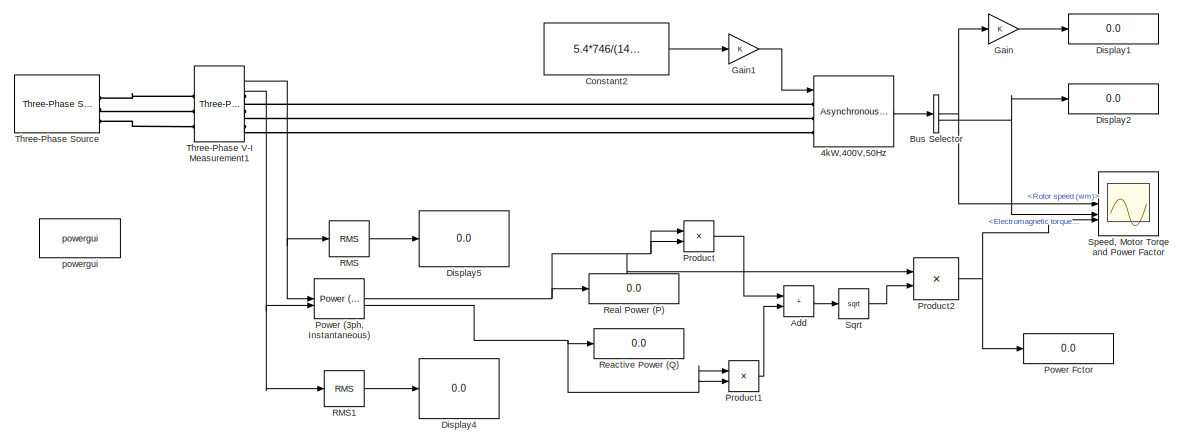
[diagram: root canvas - part 1/2, full width, top band]
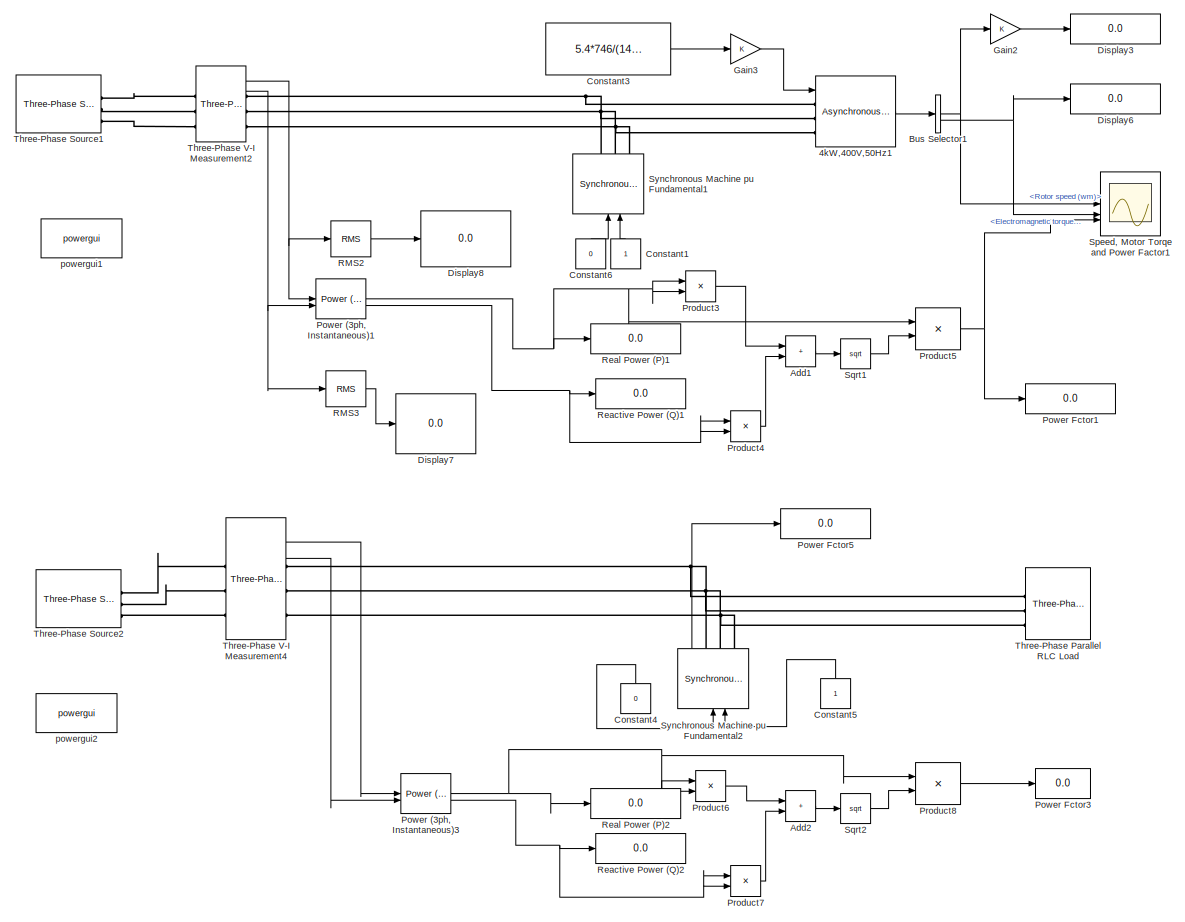
[diagram: root canvas - part 2/2, full width, bottom band]
MODEL slx_5ea6a400e1a6
KIND model
CONFIG AbsTol = auto
CONFIG EnableMultiTasking = off
CONFIG FixedStep = auto
CONFIG MaxStep = auto
CONFIG MinStep = auto
CONFIG RelTol = 1e-3
CONFIG SampleTimeConstraint = Unconstrained
CONFIG SolverName = VariableStepAuto
CONFIG StartTime = 0.0
CONFIG StopTime = 10.0
BLOCK [Reference] 4kW,400V,50Hz  REF=spsAsynchronousMachineSIUnitsLib/Asynchronous Machine
SI Units
  LibrarySourceBlock = sps_lib/Electrical Machines/Asynchronous Machine\nSI Units
  SourceBlock = spsAsynchronousMachineSIUnitsLib/Asynchronous Machine\nSI Units
  SourceType = Asynchronous Machine
BLOCK [Reference] 4kW,400V,50Hz1  REF=spsAsynchronousMachineSIUnitsLib/Asynchronous Machine
SI Units
  LibrarySourceBlock = sps_lib/Electrical Machines/Asynchronous Machine\nSI Units
  SourceBlock = spsAsynchronousMachineSIUnitsLib/Asynchronous Machine\nSI Units
  SourceType = Asynchronous Machine
BLOCK [Sum] Add
  IconShape = rectangular
BLOCK [Sum] Add1
  IconShape = rectangular
BLOCK [Sum] Add2
  IconShape = rectangular
BLOCK [BusSelector] Bus Selector
  OutputSignals = Mechanical.Rotor speed (wm),Mechanical.Electromagnetic torque Te (N*m)
BLOCK [BusSelector] Bus Selector1
  OutputSignals = Mechanical.Rotor speed (wm),Mechanical.Electromagnetic torque Te (N*m)
BLOCK [Constant] Constant1
  NameLocation = right
BLOCK [Constant] Constant2
  Value = 5.4*746/(1430*2*pi/60)
BLOCK [Constant] Constant3
  Value = 5.4*746/(1430*2*pi/60)
BLOCK [Constant] Constant4
  NameLocation = right
  Value = 0
BLOCK [Constant] Constant5
  NameLocation = right
BLOCK [Constant] Constant6
  NameLocation = right
  Value = 0
BLOCK [Display] Display1
  Decimation = 1
BLOCK [Display] Display2
  Decimation = 1
BLOCK [Display] Display3
  Decimation = 1
BLOCK [Display] Display4
  Decimation = 1
BLOCK [Display] Display5
  Decimation = 1
BLOCK [Display] Display6
  Decimation = 1
BLOCK [Display] Display7
  Decimation = 1
BLOCK [Display] Display8
  Decimation = 1
BLOCK [Gain] Gain
BLOCK [Gain] Gain1
BLOCK [Gain] Gain2
BLOCK [Gain] Gain3
BLOCK [Reference] Power (3ph, Instantaneous)  REF=spsPower3phInstantaneousLib/Power
(3ph, Instantaneous)
  LibrarySourceBlock = sps_lib/Sensors and Measurements/Power\n(3ph, Instantaneous)
  SourceBlock = spsPower3phInstantaneousLib/Power\n(3ph, Instantaneous)
  SourceType = Power (3ph, Instantaneous)
BLOCK [Reference] Power (3ph, Instantaneous)1  REF=spsPower3phInstantaneousLib/Power
(3ph, Instantaneous)
  LibrarySourceBlock = sps_lib/Sensors and Measurements/Power\n(3ph, Instantaneous)
  SourceBlock = spsPower3phInstantaneousLib/Power\n(3ph, Instantaneous)
  SourceType = Power (3ph, Instantaneous)
BLOCK [Reference] Power (3ph, Instantaneous)3  REF=spsPower3phInstantaneousLib/Power
(3ph, Instantaneous)
  LibrarySourceBlock = sps_lib/Sensors and Measurements/Power\n(3ph, Instantaneous)
  SourceBlock = spsPower3phInstantaneousLib/Power\n(3ph, Instantaneous)
  SourceType = Power (3ph, Instantaneous)
BLOCK [Display] Power Fctor
  Decimation = 1
BLOCK [Display] Power Fctor1
  Decimation = 1
BLOCK [Display] Power Fctor3
  Decimation = 1
BLOCK [Display] Power Fctor5
  Decimation = 1
BLOCK [Product] Product
BLOCK [Product] Product1
BLOCK [Product] Product2
  Inputs = */
BLOCK [Product] Product3
BLOCK [Product] Product4
BLOCK [Product] Product5
  Inputs = */
BLOCK [Product] Product6
BLOCK [Product] Product7
BLOCK [Product] Product8
  Inputs = */
BLOCK [Reference] RMS  REF=spsRMSLib/RMS
  LibrarySourceBlock = sps_lib/Sensors and Measurements/RMS
  SourceBlock = spsRMSLib/RMS
  SourceType = RMS
BLOCK [Reference] RMS1  REF=spsRMSLib/RMS
  LibrarySourceBlock = sps_lib/Sensors and Measurements/RMS
  SourceBlock = spsRMSLib/RMS
  SourceType = RMS
BLOCK [Reference] RMS2  REF=spsRMSLib/RMS
  LibrarySourceBlock = sps_lib/Sensors and Measurements/RMS
  SourceBlock = spsRMSLib/RMS
  SourceType = RMS
BLOCK [Reference] RMS3  REF=spsRMSLib/RMS
  LibrarySourceBlock = sps_lib/Sensors and Measurements/RMS
  SourceBlock = spsRMSLib/RMS
  SourceType = RMS
BLOCK [Display] Reactive Power (Q)
  Decimation = 1
BLOCK [Display] Reactive Power (Q)1
  Decimation = 1
BLOCK [Display] Reactive Power (Q)2
  Decimation = 1
BLOCK [Display] Real Power (P)
  Decimation = 1
BLOCK [Display] Real Power (P)1
  Decimation = 1
BLOCK [Display] Real Power (P)2
  Decimation = 1
BLOCK [Scope] Speed, Motor Torqe and Power Factor
  Floating = off
  NumInputPorts = 3
  ScopeSpecificationString = Simulink.scopes.TimeScopeBlockCfg('CurrentConfiguration', extmgr.ConfigurationSet(extmgr.Configuration('Core','General UI',true),extmgr.Configuration('Core','Source UI',true),extmgr.Configuration('Sources','WiredSimulink',true),extmgr.Configuration('Visuals','Time Domain',true,'SerializedDisplays',{struct('MinYLimReal','0.38484','MaxYLimReal','1.45971','YLabelReal','','MinYLimMag','0.38484','MaxYL...<+1545ch>
BLOCK [Scope] Speed, Motor Torqe and Power Factor1
  Floating = off
  NumInputPorts = 3
  ScopeSpecificationString = Simulink.scopes.TimeScopeBlockCfg('CurrentConfiguration', extmgr.ConfigurationSet(extmgr.Configuration('Core','General UI',true),extmgr.Configuration('Core','Source UI',true),extmgr.Configuration('Sources','WiredSimulink',true,'DataLoggingVariableName','ScopeData1'),extmgr.Configuration('Visuals','Time Domain',true,'SerializedDisplays',{struct('MinYLimReal','0.38484','MaxYLimReal','1.45971','YLabe...<+1584ch>
BLOCK [Sqrt] Sqrt
BLOCK [Sqrt] Sqrt1
BLOCK [Sqrt] Sqrt2
BLOCK [Reference] Synchronous Machine pu Fundamental1  REF=spsSynchronousMachinepuFundamentalLib/Synchronous Machine
pu Fundamental
  LibrarySourceBlock = sps_lib/Electrical Machines/Synchronous Machine\npu Fundamental
  NameLocation = right
  SourceBlock = spsSynchronousMachinepuFundamentalLib/Synchronous Machine\npu Fundamental
  SourceType = Synchronous Machine
BLOCK [Reference] Synchronous Machine pu Fundamental2  REF=spsSynchronousMachinepuFundamentalLib/Synchronous Machine
pu Fundamental
  LibrarySourceBlock = sps_lib/Electrical Machines/Synchronous Machine\npu Fundamental
  NameLocation = right
  SourceBlock = spsSynchronousMachinepuFundamentalLib/Synchronous Machine\npu Fundamental
  SourceType = Synchronous Machine
BLOCK [Reference] Three-Phase Parallel RLC Load  REF=spsThreePhaseParallelRLCLoadLib/Three-Phase
Parallel RLC Load
  AttributesFormatString = \n
  LibrarySourceBlock = sps_lib/Passives/Three-Phase\nParallel RLC Load
  NameLocation = right
  SourceBlock = spsThreePhaseParallelRLCLoadLib/Three-Phase\nParallel RLC Load
  SourceType = Three-Phase Parallel RLC Load
BLOCK [Reference] Three-Phase Source  REF=spsThreePhaseSourceLib/Three-Phase Source
  LibrarySourceBlock = sps_lib/Sources/Three-Phase Source
  SourceBlock = spsThreePhaseSourceLib/Three-Phase Source
  SourceType = Three-Phase Source
BLOCK [Reference] Three-Phase Source1  REF=spsThreePhaseSourceLib/Three-Phase Source
  LibrarySourceBlock = sps_lib/Sources/Three-Phase Source
  SourceBlock = spsThreePhaseSourceLib/Three-Phase Source
  SourceType = Three-Phase Source
BLOCK [Reference] Three-Phase Source2  REF=spsThreePhaseSourceLib/Three-Phase Source
  LibrarySourceBlock = sps_lib/Sources/Three-Phase Source
  SourceBlock = spsThreePhaseSourceLib/Three-Phase Source
  SourceType = Three-Phase Source
BLOCK [Reference] Three-Phase V-I Measurement1  REF=spsThreePhaseVIMeasurementLib/Three-Phase
V-I Measurement
  LibrarySourceBlock = sps_lib/Sensors and Measurements/Three-Phase\nV-I Measurement
  SourceBlock = spsThreePhaseVIMeasurementLib/Three-Phase\nV-I Measurement
  SourceType = Three-Phase VI Measurement
BLOCK [Reference] Three-Phase V-I Measurement2  REF=spsThreePhaseVIMeasurementLib/Three-Phase
V-I Measurement
  LibrarySourceBlock = sps_lib/Sensors and Measurements/Three-Phase\nV-I Measurement
  SourceBlock = spsThreePhaseVIMeasurementLib/Three-Phase\nV-I Measurement
  SourceType = Three-Phase VI Measurement
BLOCK [Reference] Three-Phase V-I Measurement4  REF=spsThreePhaseVIMeasurementLib/Three-Phase
V-I Measurement
  LibrarySourceBlock = sps_lib/Sensors and Measurements/Three-Phase\nV-I Measurement
  SourceBlock = spsThreePhaseVIMeasurementLib/Three-Phase\nV-I Measurement
  SourceType = Three-Phase VI Measurement
BLOCK [Reference] powergui  REF=sps_lib/powergui
  LibrarySourceBlock = sps_lib/powergui
  Priority = 1
  SourceBlock = sps_lib/powergui
  SourceType = PSB option menu block
BLOCK [Reference] powergui1  REF=spspowerguiLib/powergui
  LibrarySourceBlock = sps_lib/powergui
  Priority = 1
  SourceBlock = spspowerguiLib/powergui
  SourceType = PSB option menu block
BLOCK [Reference] powergui2  REF=spspowerguiLib/powergui
  LibrarySourceBlock = sps_lib/powergui
  Priority = 1
  SourceBlock = spspowerguiLib/powergui
  SourceType = PSB option menu block
LINE 4kW,400V,50Hz1:1 -> Bus Selector1:1
LINE 4kW,400V,50Hz:1 -> Bus Selector:1
LINE Add1:1 -> Sqrt1:1
LINE Add2:1 -> Sqrt2:1
LINE Add:1 -> Sqrt:1
NET Bus Selector1:1 -> Gain2:1, Speed, Motor Torqe and Power Factor1:1
NET Bus Selector1:2 -> Display6:1, Speed, Motor Torqe and Power Factor1:2
NET Bus Selector:1 -> Gain:1, Speed, Motor Torqe and Power Factor:1
NET Bus Selector:2 -> Display2:1, Speed, Motor Torqe and Power Factor:2
LINE Constant1:1 -> Synchronous Machine pu Fundamental1:2
LINE Constant2:1 -> Gain1:1
LINE Constant3:1 -> Gain3:1
LINE Constant4:1 -> Synchronous Machine pu Fundamental2:1
LINE Constant5:1 -> Synchronous Machine pu Fundamental2:2
LINE Constant6:1 -> Synchronous Machine pu Fundamental1:1
LINE Gain1:1 -> 4kW,400V,50Hz:1
LINE Gain2:1 -> Display3:1
LINE Gain3:1 -> 4kW,400V,50Hz1:1
LINE Gain:1 -> Display1:1
NET Power (3ph, Instantaneous)1:1 -> Product3:1, Product3:2, Product5:1, Real Power (P)1:1
NET Power (3ph, Instantaneous)1:2 -> Product4:1, Product4:2, Reactive Power (Q)1:1
NET Power (3ph, Instantaneous)3:1 -> Product6:1, Product6:2, Product8:1, Real Power (P)2:1
NET Power (3ph, Instantaneous)3:2 -> Product7:1, Product7:2, Reactive Power (Q)2:1
NET Power (3ph, Instantaneous):1 -> Product2:1, Product:1, Product:2, Real Power (P):1
NET Power (3ph, Instantaneous):2 -> Product1:1, Product1:2, Reactive Power (Q):1
LINE Product1:1 -> Add:2
NET Product2:1 -> Power Fctor:1, Speed, Motor Torqe and Power Factor:3
LINE Product3:1 -> Add1:1
LINE Product4:1 -> Add1:2
NET Product5:1 -> Power Fctor1:1, Speed, Motor Torqe and Power Factor1:3
LINE Product6:1 -> Add2:1
LINE Product7:1 -> Add2:2
LINE Product8:1 -> Power Fctor3:1
LINE Product:1 -> Add:1
LINE RMS1:1 -> Display4:1
LINE RMS2:1 -> Display8:1
LINE RMS3:1 -> Display7:1
LINE RMS:1 -> Display5:1
LINE Sqrt1:1 -> Product5:2
LINE Sqrt2:1 -> Product8:2
LINE Sqrt:1 -> Product2:2
LINE Synchronous Machine pu Fundamental2:1 -> Power Fctor5:1
NET Three-Phase V-I Measurement1:1 -> Power (3ph, Instantaneous):1, RMS:1
NET Three-Phase V-I Measurement1:2 -> Power (3ph, Instantaneous):2, RMS1:1
NET Three-Phase V-I Measurement2:1 -> Power (3ph, Instantaneous)1:1, RMS2:1
NET Three-Phase V-I Measurement2:2 -> Power (3ph, Instantaneous)1:2, RMS3:1
LINE Three-Phase V-I Measurement4:1 -> Power (3ph, Instantaneous)3:1
LINE Three-Phase V-I Measurement4:2 -> Power (3ph, Instantaneous)3:2
PNET net1: 4kW,400V,50Hz1:LConn1 -- Synchronous Machine pu Fundamental1:RConn1 -- Three-Phase V-I Measurement2:RConn1
PNET net2: 4kW,400V,50Hz1:LConn2 -- Synchronous Machine pu Fundamental1:RConn2 -- Three-Phase V-I Measurement2:RConn2
PNET net3: 4kW,400V,50Hz1:LConn3 -- Synchronous Machine pu Fundamental1:RConn3 -- Three-Phase V-I Measurement2:RConn3
PLINE 4kW,400V,50Hz:LConn1 -- Three-Phase V-I Measurement1:RConn1
PLINE 4kW,400V,50Hz:LConn2 -- Three-Phase V-I Measurement1:RConn2
PLINE 4kW,400V,50Hz:LConn3 -- Three-Phase V-I Measurement1:RConn3
PNET net4: Synchronous Machine pu Fundamental2:RConn1 -- Three-Phase Parallel RLC Load:LConn1 -- Three-Phase V-I Measurement4:RConn1
PNET net5: Synchronous Machine pu Fundamental2:RConn2 -- Three-Phase Parallel RLC Load:LConn2 -- Three-Phase V-I Measurement4:RConn2
PNET net6: Synchronous Machine pu Fundamental2:RConn3 -- Three-Phase Parallel RLC Load:LConn3 -- Three-Phase V-I Measurement4:RConn3
PLINE Three-Phase Source1:RConn1 -- Three-Phase V-I Measurement2:LConn1
PLINE Three-Phase Source1:RConn2 -- Three-Phase V-I Measurement2:LConn2
PLINE Three-Phase Source1:RConn3 -- Three-Phase V-I Measurement2:LConn3
PLINE Three-Phase Source2:RConn1 -- Three-Phase V-I Measurement4:LConn1
PLINE Three-Phase Source2:RConn2 -- Three-Phase V-I Measurement4:LConn2
PLINE Three-Phase Source2:RConn3 -- Three-Phase V-I Measurement4:LConn3
PLINE Three-Phase Source:RConn1 -- Three-Phase V-I Measurement1:LConn1
PLINE Three-Phase Source:RConn2 -- Three-Phase V-I Measurement1:LConn2
PLINE Three-Phase Source:RConn3 -- Three-Phase V-I Measurement1:LConn3
note: NET lines group one-source signal fan-out (src -> all destinations, sorted); 1:1 wires keep LINE; PNET lines group multi-terminal physical nets as a canonical sorted terminal list (undirected conserving connections); 2-terminal nets keep the pairwise PLINE form
